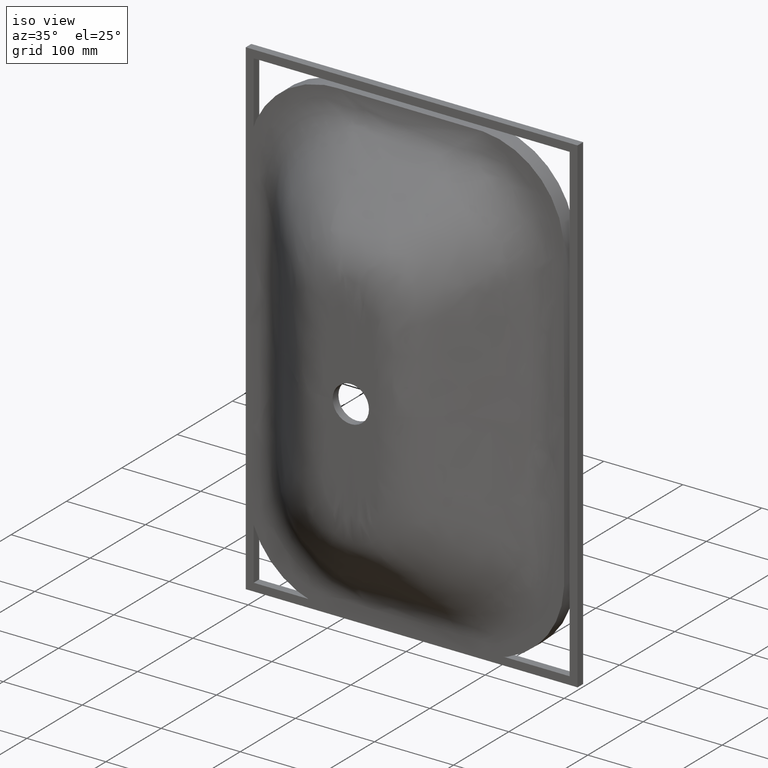
[diagram: clean part render]
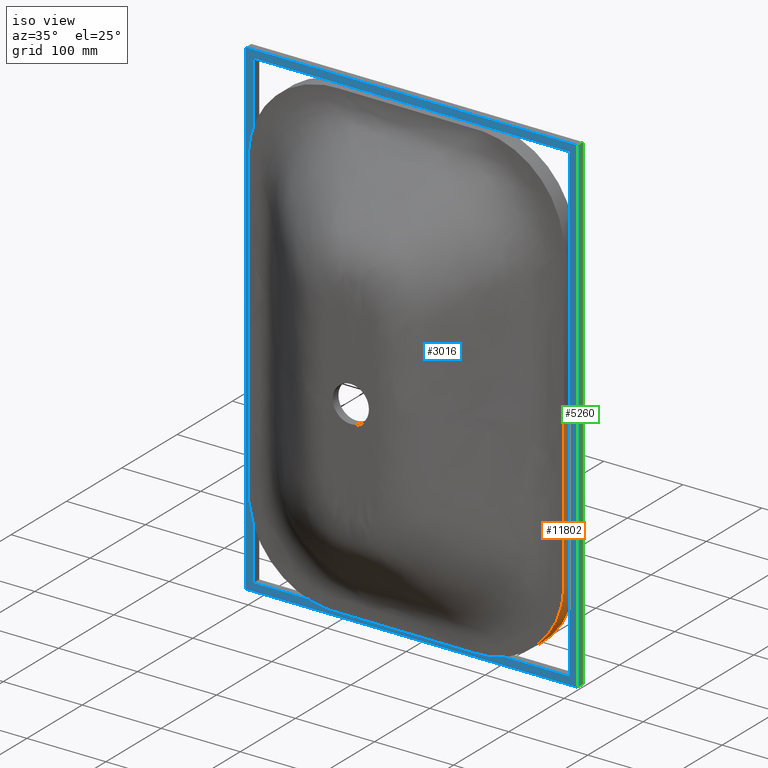
[diagram: same view with three faces highlighted in distinct colors, each labeled with its STEP entity id]
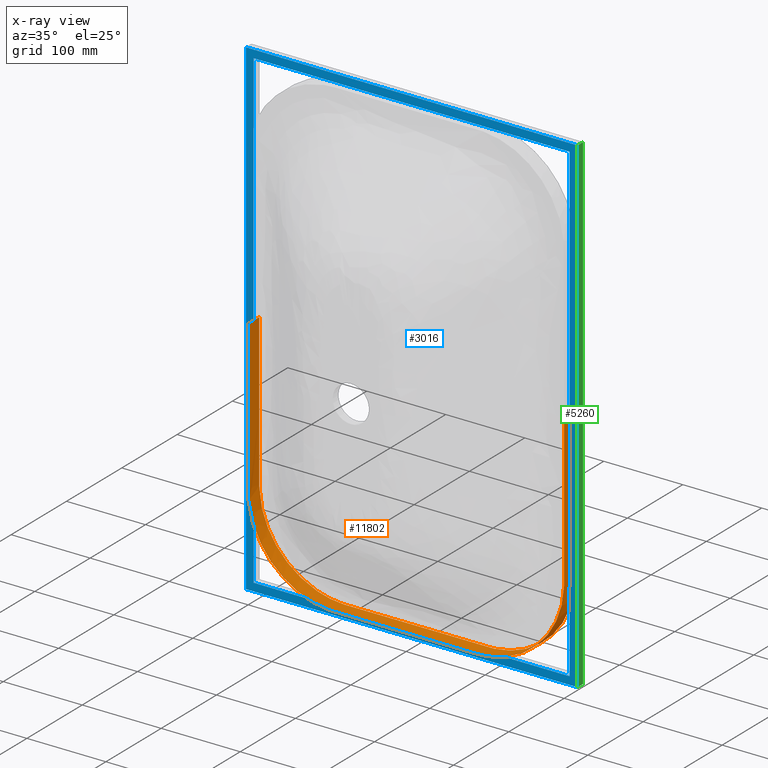
[diagram: x-ray of the same camera — body ghosted, the three highlighted faces saturated]
A machine part, iso view with three faces highlighted in distinct colors.
The next image is the same camera in x-ray (body ghosted, the three faces saturated) — at least one of them is partly hidden behind the body in this view.
Their STEP definitions:

[orange] entity #11802 — the highlighted face is a freeform B-spline surface patch.
#359 = CARTESIAN_POINT ( 'NONE',  ( -200.0000000000000600, 120.0000000000000000, -9.499999999999959100 ) ) ;
#507 = B_SPLINE_CURVE_WITH_KNOTS ( 'NONE', 3,
 ( #12117, #8622, #9222, #1859 ),
 .UNSPECIFIED., .F., .F.,
 ( 4, 4 ),
 ( 0.0000000000000000000, 1.000000000000000000 ),
 .UNSPECIFIED. ) ;
#657 = CARTESIAN_POINT ( 'NONE',  ( -200.0000000000000600, 120.0000000000000000, 6.505213034913026600E-016 ) ) ;
#742 = CARTESIAN_POINT ( 'NONE',  ( -194.0399032443967000, 119.9999999999999400, -227.0779828008005800 ) ) ;
#809 = CARTESIAN_POINT ( 'NONE',  ( -198.8080864718467600, 119.9999999999999700, -208.5657858098219900 ) ) ;
#875 = CARTESIAN_POINT ( 'NONE',  ( -194.0399032443967000, 99.99999999999995700, -227.0779828008005800 ) ) ;
#921 = CARTESIAN_POINT ( 'NONE',  ( 200.0000000000000600, 119.9999999999999600, -113.8931032711104100 ) ) ;
#1092 = CARTESIAN_POINT ( 'NONE',  ( -199.9999999999998900, 119.9999999999999600, -85.49999999999987200 ) ) ;
#1542 = CARTESIAN_POINT ( 'NONE',  ( -200.0000000000001100, 100.0000000000000000, -3.166666666666656300 ) ) ;
#1577 = CARTESIAN_POINT ( 'NONE',  ( -200.0000000000001100, 100.0000000000000000, 3.035766082959412400E-015 ) ) ;
#1604 = CARTESIAN_POINT ( 'NONE',  ( -76.98436227799040000, 100.0000000000000000, -299.9999999999999400 ) ) ;
#1859 = CARTESIAN_POINT ( 'NONE',  ( 200.0000000000001100, 119.9999999999999700, -4.857225732735059900E-013 ) ) ;
#1918 = CARTESIAN_POINT ( 'NONE',  ( 200.0000000000006800, 99.99999999999991500, -199.3423852784319200 ) ) ;
#1944 = CARTESIAN_POINT ( 'NONE',  ( -200.0000000000002000, 119.9999999999999900, -199.3423852784305600 ) ) ;
#2631 = CARTESIAN_POINT ( 'NONE',  ( -121.1660790566502800, 99.99999999999997200, -296.8106721460858400 ) ) ;
#2946 = VERTEX_POINT ( 'NONE', #10057 ) ;
#2985 = CARTESIAN_POINT ( 'NONE',  ( 1.734723475976807100E-013, 120.0000000000000000, -299.9999999999999400 ) ) ;
#3215 = CARTESIAN_POINT ( 'NONE',  ( 200.0000000000001100, 119.9999999999999900, -50.55976993777626700 ) ) ;
#3276 = CARTESIAN_POINT ( 'NONE',  ( 199.9999999999992900, 100.0000000000000900, -177.2264366044442500 ) ) ;
#3546 = EDGE_LOOP ( 'NONE', ( #8606, #8740, #9211, #5068 ) ) ;
#3737 = CARTESIAN_POINT ( 'NONE',  ( -200.0000000000001100, 99.99999999999994300, -18.99999999999994000 ) ) ;
#3746 = CARTESIAN_POINT ( 'NONE',  ( 102.0471619301132500, 100.0000000000000000, -299.9999999999999400 ) ) ;
#4166 = FACE_OUTER_BOUND ( 'NONE', #3546, .T. ) ;
#4976 = EDGE_CURVE ( 'NONE', #2946, #5466, #13759, .T. ) ;
#4997 = CARTESIAN_POINT ( 'NONE',  ( -200.0000000000001400, 99.99999999999997200, -9.499999999999973400 ) ) ;
#5068 = ORIENTED_EDGE ( 'NONE', *, *, #5881, .F. ) ;
#5189 = B_SPLINE_CURVE_WITH_KNOTS ( 'NONE', 3,
 ( #8139, #7375, #7321, #7318 ),
 .UNSPECIFIED., .F., .F.,
 ( 4, 4 ),
 ( 0.0000000000000000000, 1.000000000000000000 ),
 .UNSPECIFIED. ) ;
#5219 = CARTESIAN_POINT ( 'NONE',  ( -61.39880351619536500, 120.0000000000000300, -299.9999999999999400 ) ) ;
#5434 = CARTESIAN_POINT ( 'NONE',  ( -200.0000000000000600, 120.0000000000000000, 6.505213034913026600E-016 ) ) ;
#5435 = CARTESIAN_POINT ( 'NONE',  ( -200.0000000000000600, 120.0000000000000000, 3.166666666666654500 ) ) ;
#5447 = CARTESIAN_POINT ( 'NONE',  ( -200.0000000000000600, 120.0000000000000100, 9.499999999999962700 ) ) ;
#5463 = CARTESIAN_POINT ( 'NONE',  ( -200.0000000000000900, 120.0000000000000300, 19.00000000000000400 ) ) ;
#5466 = VERTEX_POINT ( 'NONE', #6899 ) ;
#5478 = CARTESIAN_POINT ( 'NONE',  ( -200.0000000000001400, 120.0000000000000600, 28.50000000000005000 ) ) ;
#5481 = CARTESIAN_POINT ( 'NONE',  ( -200.0000000000002300, 120.0000000000001400, 85.50000000000021300 ) ) ;
#5506 = CARTESIAN_POINT ( 'NONE',  ( -200.0000000000003700, 120.0000000000002100, 139.3333333333337700 ) ) ;
#5522 = CARTESIAN_POINT ( 'NONE',  ( -199.9999999999999700, 119.9999999999999600, 199.3423852784305300 ) ) ;
#5523 = CARTESIAN_POINT ( 'NONE',  ( -198.8080864718465600, 119.9999999999999900, 208.5657858098220700 ) ) ;
#5547 = CARTESIAN_POINT ( 'NONE',  ( -194.0399032443967000, 120.0000000000000000, 227.0779828008008100 ) ) ;
#5556 = CARTESIAN_POINT ( 'NONE',  ( 121.1660790566503700, 119.9999999999999600, -296.8106721460857200 ) ) ;
#5560 = CARTESIAN_POINT ( 'NONE',  ( -186.6589759895213700, 120.0000000000000900, 245.1906514458044600 ) ) ;
#5561 = CARTESIAN_POINT ( 'NONE',  ( -168.6923294650224200, 119.9999999999999700, 268.6923294650223400 ) ) ;
#5572 = CARTESIAN_POINT ( 'NONE',  ( -147.3414267532380100, 120.0000000000000600, 285.0147497671384300 ) ) ;
#5587 = CARTESIAN_POINT ( 'NONE',  ( -121.1660790566503200, 119.9999999999999900, 296.8106721460858900 ) ) ;
#5604 = CARTESIAN_POINT ( 'NONE',  ( -102.0471619301132100, 119.9999999999999700, 300.0000000000000600 ) ) ;
#5606 = CARTESIAN_POINT ( 'NONE',  ( -83.49218113899475200, 120.0000000000000000, 300.0000000000000600 ) ) ;
#5616 = CARTESIAN_POINT ( 'NONE',  ( -76.98436227798946200, 120.0000000000000000, 300.0000000000000600 ) ) ;
#5629 = CARTESIAN_POINT ( 'NONE',  ( -65.93767346658960100, 120.0000000000000000, 300.0000000000000600 ) ) ;
#5649 = CARTESIAN_POINT ( 'NONE',  ( -61.39880351619501700, 120.0000000000000000, 300.0000000000000600 ) ) ;
#5651 = CARTESIAN_POINT ( 'NONE',  ( -37.90662237720037100, 120.0000000000000300, 300.0000000000001100 ) ) ;
#5663 = CARTESIAN_POINT ( 'NONE',  ( -3.053113317719180500E-013, 120.0000000000000000, 300.0000000000000600 ) ) ;
#5677 = CARTESIAN_POINT ( 'NONE',  ( 37.90662237719976000, 120.0000000000000000, 300.0000000000000600 ) ) ;
#5694 = CARTESIAN_POINT ( 'NONE',  ( 61.39880351619482500, 120.0000000000000000, 300.0000000000000600 ) ) ;
#5697 = CARTESIAN_POINT ( 'NONE',  ( 65.93767346658975700, 120.0000000000000400, 300.0000000000000600 ) ) ;
#5709 = CARTESIAN_POINT ( 'NONE',  ( 76.98436227798987400, 120.0000000000000100, 300.0000000000000600 ) ) ;
#5712 = CARTESIAN_POINT ( 'NONE',  ( 83.49218113899498000, 120.0000000000000000, 300.0000000000000600 ) ) ;
#5722 = CARTESIAN_POINT ( 'NONE',  ( 102.0471619301131900, 120.0000000000000000, 300.0000000000000600 ) ) ;
#5740 = CARTESIAN_POINT ( 'NONE',  ( 121.1660790566501800, 120.0000000000000100, 296.8106721460861800 ) ) ;
#5743 = CARTESIAN_POINT ( 'NONE',  ( 147.3414267532380100, 120.0000000000000100, 285.0147497671384800 ) ) ;
#5756 = CARTESIAN_POINT ( 'NONE',  ( 168.6923294650226500, 119.9999999999998900, 268.6923294650225700 ) ) ;
#5758 = CARTESIAN_POINT ( 'NONE',  ( 186.6589759895216200, 120.0000000000000700, 245.1906514458039500 ) ) ;
#5768 = CARTESIAN_POINT ( 'NONE',  ( 194.0399032443970400, 119.9999999999999700, 227.0779828008002400 ) ) ;
#5786 = CARTESIAN_POINT ( 'NONE',  ( 198.8080864718468200, 119.9999999999999900, 208.5657858098214200 ) ) ;
#5789 = CARTESIAN_POINT ( 'NONE',  ( 200.0000000000001400, 119.9999999999999100, 199.3423852784296700 ) ) ;
#5801 = CARTESIAN_POINT ( 'NONE',  ( 200.0000000000001700, 120.0000000000001100, 177.2264366044451500 ) ) ;
#5803 = CARTESIAN_POINT ( 'NONE',  ( 200.0000000000000900, 119.9999999999999700, 113.8931032711107600 ) ) ;
#5809 = CARTESIAN_POINT ( 'NONE',  ( -199.9999999999996300, 120.0000000000000900, -139.3333333333332000 ) ) ;
#5814 = CARTESIAN_POINT ( 'NONE',  ( 200.0000000000001100, 120.0000000000000000, -6.036837696399288700E-013 ) ) ;
#5835 = CARTESIAN_POINT ( 'NONE',  ( 200.0000000000000600, 119.9999999999999600, -113.8931032711114100 ) ) ;
#5839 = CARTESIAN_POINT ( 'NONE',  ( 199.9999999999992900, 119.9999999999996600, -177.2264366044442500 ) ) ;
#5858 = CARTESIAN_POINT ( 'NONE',  ( 200.0000000000006800, 120.0000000000002700, -199.3423852784319200 ) ) ;
#5870 = CARTESIAN_POINT ( 'NONE',  ( 198.8080864718465400, 120.0000000000000100, -208.5657858098240100 ) ) ;
#5881 = EDGE_CURVE ( 'NONE', #6667, #7908, #9047, .T. ) ;
#5893 = CARTESIAN_POINT ( 'NONE',  ( 194.0399032443960400, 119.9999999999999600, -227.0779828008027400 ) ) ;
#5898 = CARTESIAN_POINT ( 'NONE',  ( 186.6589759895207100, 120.0000000000000100, -245.1906514458048900 ) ) ;
#5910 = CARTESIAN_POINT ( 'NONE',  ( 168.6923294650226500, 120.0000000000000000, -268.6923294650223400 ) ) ;
#5925 = CARTESIAN_POINT ( 'NONE',  ( 147.3414267532380100, 120.0000000000000600, -285.0147497671384300 ) ) ;
#5943 = CARTESIAN_POINT ( 'NONE',  ( 121.1660790566503700, 119.9999999999999600, -296.8106721460857200 ) ) ;
#5945 = CARTESIAN_POINT ( 'NONE',  ( 102.0471619301132500, 120.0000000000000000, -299.9999999999999400 ) ) ;
#5959 = CARTESIAN_POINT ( 'NONE',  ( 83.49218113899425500, 120.0000000000000000, -300.0000000000000000 ) ) ;
#5969 = CARTESIAN_POINT ( 'NONE',  ( 76.98436227798835300, 120.0000000000000000, -299.9999999999999400 ) ) ;
#5989 = CARTESIAN_POINT ( 'NONE',  ( 65.93767346658840700, 120.0000000000000000, -300.0000000000000000 ) ) ;
#5990 = CARTESIAN_POINT ( 'NONE',  ( 61.39880351619436300, 120.0000000000000000, -300.0000000000000600 ) ) ;
#6007 = CARTESIAN_POINT ( 'NONE',  ( 37.90662237720035700, 120.0000000000000100, -299.9999999999999400 ) ) ;
#6021 = CARTESIAN_POINT ( 'NONE',  ( 1.734723475976807100E-013, 120.0000000000000000, -299.9999999999999400 ) ) ;
#6036 = CARTESIAN_POINT ( 'NONE',  ( -37.90662237720006500, 119.9999999999999700, -299.9999999999999400 ) ) ;
#6038 = CARTESIAN_POINT ( 'NONE',  ( -61.39880351619536500, 120.0000000000000300, -299.9999999999999400 ) ) ;
#6056 = CARTESIAN_POINT ( 'NONE',  ( -65.93767346659043900, 120.0000000000000300, -299.9999999999999400 ) ) ;
#6070 = CARTESIAN_POINT ( 'NONE',  ( -76.98436227799040000, 120.0000000000000100, -299.9999999999999400 ) ) ;
#6087 = CARTESIAN_POINT ( 'NONE',  ( -83.49218113899527800, 119.9999999999999900, -299.9999999999999400 ) ) ;
#6089 = CARTESIAN_POINT ( 'NONE',  ( -102.0471619301132200, 120.0000000000000600, -300.0000000000001700 ) ) ;
#6108 = CARTESIAN_POINT ( 'NONE',  ( -121.1660790566502800, 119.9999999999999400, -296.8106721460858400 ) ) ;
#6122 = CARTESIAN_POINT ( 'NONE',  ( -147.3414267532379500, 120.0000000000000400, -285.0147497671384800 ) ) ;
#6138 = CARTESIAN_POINT ( 'NONE',  ( -168.6923294650225400, 120.0000000000000000, -268.6923294650225100 ) ) ;
#6141 = CARTESIAN_POINT ( 'NONE',  ( -186.6589759895213700, 120.0000000000000600, -245.1906514458042400 ) ) ;
#6160 = CARTESIAN_POINT ( 'NONE',  ( -194.0399032443967000, 119.9999999999999400, -227.0779828008005800 ) ) ;
#6172 = CARTESIAN_POINT ( 'NONE',  ( -198.8080864718467600, 119.9999999999999700, -208.5657858098219900 ) ) ;
#6192 = CARTESIAN_POINT ( 'NONE',  ( -200.0000000000002000, 119.9999999999999900, -199.3423852784305600 ) ) ;
#6193 = CARTESIAN_POINT ( 'NONE',  ( -199.9999999999996300, 120.0000000000000900, -139.3333333333332000 ) ) ;
#6211 = CARTESIAN_POINT ( 'NONE',  ( -199.9999999999998900, 119.9999999999999600, -85.49999999999987200 ) ) ;
#6212 = CARTESIAN_POINT ( 'NONE',  ( -200.0000000000000000, 119.9999999999999900, -28.49999999999988300 ) ) ;
#6226 = CARTESIAN_POINT ( 'NONE',  ( -200.0000000000000600, 119.9999999999999900, -18.99999999999992200 ) ) ;
#6246 = CARTESIAN_POINT ( 'NONE',  ( -200.0000000000000600, 120.0000000000000000, -9.499999999999959100 ) ) ;
#6248 = CARTESIAN_POINT ( 'NONE',  ( -200.0000000000000600, 120.0000000000000000, -3.166666666666652800 ) ) ;
#6265 = CARTESIAN_POINT ( 'NONE',  ( -200.0000000000000600, 120.0000000000000000, 6.505213034913026600E-016 ) ) ;
#6266 = CARTESIAN_POINT ( 'NONE',  ( -200.0000000000000900, 113.3333333333333400, -2.385244779468109800E-015 ) ) ;
#6279 = CARTESIAN_POINT ( 'NONE',  ( -200.0000000000000900, 113.3333333333333400, 3.166666666666652800 ) ) ;
#6298 = CARTESIAN_POINT ( 'NONE',  ( -200.0000000000000900, 113.3333333333333700, 9.499999999999964500 ) ) ;
#6300 = CARTESIAN_POINT ( 'NONE',  ( -200.0000000000000900, 113.3333333333334000, 19.00000000000000700 ) ) ;
#6317 = CARTESIAN_POINT ( 'NONE',  ( -200.0000000000001400, 113.3333333333334300, 28.50000000000004600 ) ) ;
#6318 = CARTESIAN_POINT ( 'NONE',  ( -200.0000000000001400, 113.3333333333335000, 85.50000000000017100 ) ) ;
#6328 = CARTESIAN_POINT ( 'NONE',  ( -200.0000000000001100, 113.3333333333334600, 139.3333333333336600 ) ) ;
#6349 = CARTESIAN_POINT ( 'NONE',  ( -200.0000000000000000, 113.3333333333333300, 199.3423852784305300 ) ) ;
#6351 = CARTESIAN_POINT ( 'NONE',  ( -198.8080864718465900, 113.3333333333333400, 208.5657858098220200 ) ) ;
#6366 = CARTESIAN_POINT ( 'NONE',  ( -194.0399032443967300, 113.3333333333333300, 227.0779828008007800 ) ) ;
#6367 = CARTESIAN_POINT ( 'NONE',  ( -186.6589759895213700, 113.3333333333334300, 245.1906514458043500 ) ) ;
#6379 = CARTESIAN_POINT ( 'NONE',  ( -168.6923294650224500, 113.3333333333333100, 268.6923294650224000 ) ) ;
#6397 = CARTESIAN_POINT ( 'NONE',  ( -147.3414267532380100, 113.3333333333333700, 285.0147497671384300 ) ) ;
#6399 = CARTESIAN_POINT ( 'NONE',  ( -121.1660790566503300, 113.3333333333333300, 296.8106721460859500 ) ) ;
#6417 = CARTESIAN_POINT ( 'NONE',  ( -102.0471619301132300, 113.3333333333333100, 300.0000000000001700 ) ) ;
#6418 = CARTESIAN_POINT ( 'NONE',  ( -83.49218113899478100, 113.3333333333333100, 300.0000000000000600 ) ) ;
#6425 = CARTESIAN_POINT ( 'NONE',  ( -76.98436227798947600, 113.3333333333333100, 300.0000000000000600 ) ) ;
#6445 = CARTESIAN_POINT ( 'NONE',  ( -65.93767346658961500, 113.3333333333333300, 300.0000000000001100 ) ) ;
#6446 = CARTESIAN_POINT ( 'NONE',  ( -61.39880351619502400, 113.3333333333333400, 300.0000000000001100 ) ) ;
#6462 = CARTESIAN_POINT ( 'NONE',  ( -37.90662237720037100, 113.3333333333333600, 300.0000000000001100 ) ) ;
#6463 = CARTESIAN_POINT ( 'NONE',  ( -2.833381677428785100E-013, 113.3333333333333400, 300.0000000000000600 ) ) ;
#6473 = CARTESIAN_POINT ( 'NONE',  ( 37.90662237719979500, 113.3333333333333600, 300.0000000000000600 ) ) ;
#6493 = CARTESIAN_POINT ( 'NONE',  ( 61.39880351619485300, 113.3333333333333400, 300.0000000000000600 ) ) ;
#6495 = CARTESIAN_POINT ( 'NONE',  ( 65.93767346658978600, 113.3333333333333700, 300.0000000000000600 ) ) ;
#6510 = CARTESIAN_POINT ( 'NONE',  ( 76.98436227798988800, 113.3333333333333300, 300.0000000000000600 ) ) ;
#6511 = CARTESIAN_POINT ( 'NONE',  ( 83.49218113899500800, 113.3333333333333300, 300.0000000000000600 ) ) ;
#6523 = CARTESIAN_POINT ( 'NONE',  ( 102.0471619301131800, 113.3333333333333100, 300.0000000000001100 ) ) ;
#6538 = CARTESIAN_POINT ( 'NONE',  ( 121.1660790566501800, 113.3333333333333400, 296.8106721460861800 ) ) ;
#6554 = CARTESIAN_POINT ( 'NONE',  ( 147.3414267532380100, 113.3333333333333300, 285.0147497671384800 ) ) ;
#6555 = CARTESIAN_POINT ( 'NONE',  ( 168.6923294650226500, 113.3333333333332400, 268.6923294650225700 ) ) ;
#6570 = CARTESIAN_POINT ( 'NONE',  ( 186.6589759895216200, 113.3333333333333900, 245.1906514458039800 ) ) ;
#6589 = CARTESIAN_POINT ( 'NONE',  ( 194.0399032443970400, 113.3333333333332900, 227.0779828008002700 ) ) ;
#6605 = CARTESIAN_POINT ( 'NONE',  ( 198.8080864718468200, 113.3333333333333300, 208.5657858098214500 ) ) ;
#6607 = CARTESIAN_POINT ( 'NONE',  ( 200.0000000000001400, 113.3333333333331400, 199.3423852784297000 ) ) ;
#6633 = CARTESIAN_POINT ( 'NONE',  ( 200.0000000000001700, 113.3333333333335800, 177.2264366044451800 ) ) ;
#6650 = CARTESIAN_POINT ( 'NONE',  ( 200.0000000000000900, 113.3333333333333100, 113.8931032711107900 ) ) ;
#6651 = CARTESIAN_POINT ( 'NONE',  ( 200.0000000000001100, 113.3333333333333300, -5.574244769472139800E-013 ) ) ;
#6667 = VERTEX_POINT ( 'NONE', #11848 ) ;
#6675 = CARTESIAN_POINT ( 'NONE',  ( 200.0000000000000900, 113.3333333333333000, -113.8931032711114100 ) ) ;
#6691 = CARTESIAN_POINT ( 'NONE',  ( 199.9999999999992900, 113.3333333333331300, -177.2264366044442500 ) ) ;
#6694 = CARTESIAN_POINT ( 'NONE',  ( 200.0000000000006800, 113.3333333333335000, -199.3423852784319200 ) ) ;
#6721 = CARTESIAN_POINT ( 'NONE',  ( 198.8080864718465400, 113.3333333333333400, -208.5657858098240100 ) ) ;
#6736 = CARTESIAN_POINT ( 'NONE',  ( 194.0399032443960400, 113.3333333333333000, -227.0779828008027400 ) ) ;
#6737 = CARTESIAN_POINT ( 'NONE',  ( 186.6589759895207100, 113.3333333333333700, -245.1906514458048900 ) ) ;
#6747 = CARTESIAN_POINT ( 'NONE',  ( 168.6923294650226500, 113.3333333333333400, -268.6923294650223400 ) ) ;
#6762 = CARTESIAN_POINT ( 'NONE',  ( 147.3414267532380100, 113.3333333333334100, -285.0147497671384300 ) ) ;
#6780 = CARTESIAN_POINT ( 'NONE',  ( 121.1660790566503700, 113.3333333333333400, -296.8106721460857200 ) ) ;
#6781 = CARTESIAN_POINT ( 'NONE',  ( 102.0471619301132500, 113.3333333333333900, -299.9999999999999400 ) ) ;
#6792 = CARTESIAN_POINT ( 'NONE',  ( 83.49218113899425500, 113.3333333333333600, -300.0000000000000000 ) ) ;
#6810 = CARTESIAN_POINT ( 'NONE',  ( 76.98436227798835300, 113.3333333333333900, -299.9999999999999400 ) ) ;
#6834 = CARTESIAN_POINT ( 'NONE',  ( 65.93767346658840700, 113.3333333333333600, -300.0000000000000000 ) ) ;
#6835 = CARTESIAN_POINT ( 'NONE',  ( 61.39880351619435600, 113.3333333333333400, -300.0000000000000600 ) ) ;
#6847 = CARTESIAN_POINT ( 'NONE',  ( 37.90662237720035700, 113.3333333333333700, -299.9999999999999400 ) ) ;
#6852 = CARTESIAN_POINT ( 'NONE',  ( 1.676899360110913900E-013, 113.3333333333333600, -299.9999999999999400 ) ) ;
#6865 = CARTESIAN_POINT ( 'NONE',  ( -37.90662237720007300, 113.3333333333333300, -299.9999999999999400 ) ) ;
#6885 = CARTESIAN_POINT ( 'NONE',  ( -61.39880351619537200, 113.3333333333333900, -299.9999999999999400 ) ) ;
#6897 = CARTESIAN_POINT ( 'NONE',  ( -65.93767346659043900, 113.3333333333333700, -299.9999999999999400 ) ) ;
#6899 = CARTESIAN_POINT ( 'NONE',  ( 200.0000000000001100, 99.99999999999998600, -5.055243578884945900E-013 ) ) ;
#6902 = CARTESIAN_POINT ( 'NONE',  ( -76.98436227799041400, 113.3333333333333600, -299.9999999999999400 ) ) ;
#6911 = CARTESIAN_POINT ( 'NONE',  ( -83.49218113899529200, 113.3333333333333400, -299.9999999999999400 ) ) ;
#6929 = CARTESIAN_POINT ( 'NONE',  ( -102.0471619301132300, 113.3333333333333700, -300.0000000000001700 ) ) ;
#6931 = CARTESIAN_POINT ( 'NONE',  ( -121.1660790566502900, 113.3333333333333000, -296.8106721460858400 ) ) ;
#6943 = CARTESIAN_POINT ( 'NONE',  ( -147.3414267532379500, 113.3333333333333900, -285.0147497671384800 ) ) ;
#6949 = CARTESIAN_POINT ( 'NONE',  ( -168.6923294650225400, 113.3333333333333400, -268.6923294650225100 ) ) ;
#6958 = CARTESIAN_POINT ( 'NONE',  ( -186.6589759895213700, 113.3333333333333900, -245.1906514458042400 ) ) ;
#6977 = CARTESIAN_POINT ( 'NONE',  ( -194.0399032443967300, 113.3333333333333000, -227.0779828008005800 ) ) ;
#6979 = CARTESIAN_POINT ( 'NONE',  ( -198.8080864718467900, 113.3333333333333300, -208.5657858098219900 ) ) ;
#6995 = CARTESIAN_POINT ( 'NONE',  ( -200.0000000000002300, 113.3333333333333300, -199.3423852784305800 ) ) ;
#7005 = CARTESIAN_POINT ( 'NONE',  ( -199.9999999999996300, 113.3333333333333700, -139.3333333333330900 ) ) ;
#7023 = CARTESIAN_POINT ( 'NONE',  ( -199.9999999999999100, 113.3333333333332700, -85.49999999999985800 ) ) ;
#7026 = CARTESIAN_POINT ( 'NONE',  ( -200.0000000000000600, 113.3333333333333300, -28.49999999999989300 ) ) ;
#7037 = CARTESIAN_POINT ( 'NONE',  ( -200.0000000000000900, 113.3333333333333300, -18.99999999999993200 ) ) ;
#7041 = CARTESIAN_POINT ( 'NONE',  ( -200.0000000000000900, 113.3333333333333600, -9.499999999999968000 ) ) ;
#7053 = CARTESIAN_POINT ( 'NONE',  ( -200.0000000000000900, 113.3333333333333400, -3.166666666666658100 ) ) ;
#7072 = CARTESIAN_POINT ( 'NONE',  ( -200.0000000000000900, 113.3333333333333400, -2.385244779468109800E-015 ) ) ;
#7073 = CARTESIAN_POINT ( 'NONE',  ( -200.0000000000000900, 106.6666666666666900, 6.071532165918824800E-015 ) ) ;
#7091 = CARTESIAN_POINT ( 'NONE',  ( -200.0000000000000900, 106.6666666666666900, 3.166666666666663000 ) ) ;
#7102 = CARTESIAN_POINT ( 'NONE',  ( -200.0000000000000900, 106.6666666666666900, 9.499999999999976900 ) ) ;
#7120 = CARTESIAN_POINT ( 'NONE',  ( -200.0000000000001100, 106.6666666666667000, 19.00000000000001400 ) ) ;
#7121 = CARTESIAN_POINT ( 'NONE',  ( -200.0000000000001100, 106.6666666666667300, 28.50000000000005300 ) ) ;
#7142 = CARTESIAN_POINT ( 'NONE',  ( -200.0000000000000600, 106.6666666666667700, 85.50000000000014200 ) ) ;
#7155 = CARTESIAN_POINT ( 'NONE',  ( -199.9999999999998900, 106.6666666666666000, 139.3333333333334800 ) ) ;
#7171 = CARTESIAN_POINT ( 'NONE',  ( -200.0000000000001100, 106.6666666666666700, 199.3423852784305300 ) ) ;
#7172 = CARTESIAN_POINT ( 'NONE',  ( -198.8080864718466500, 106.6666666666666700, 208.5657858098219600 ) ) ;
#7192 = CARTESIAN_POINT ( 'NONE',  ( -194.0399032443968400, 106.6666666666666400, 227.0779828008007800 ) ) ;
#7209 = CARTESIAN_POINT ( 'NONE',  ( -186.6589759895213900, 106.6666666666667400, 245.1906514458042600 ) ) ;
#7229 = CARTESIAN_POINT ( 'NONE',  ( -168.6923294650225400, 106.6666666666666400, 268.6923294650224000 ) ) ;
#7230 = CARTESIAN_POINT ( 'NONE',  ( -147.3414267532381000, 106.6666666666667000, 285.0147497671383700 ) ) ;
#7251 = CARTESIAN_POINT ( 'NONE',  ( -121.1660790566503600, 106.6666666666666600, 296.8106721460860600 ) ) ;
#7266 = CARTESIAN_POINT ( 'NONE',  ( -102.0471619301132900, 106.6666666666666400, 300.0000000000003400 ) ) ;
#7286 = CARTESIAN_POINT ( 'NONE',  ( -83.49218113899482300, 106.6666666666666400, 300.0000000000000600 ) ) ;
#7305 = CARTESIAN_POINT ( 'NONE',  ( -76.98436227798951800, 106.6666666666666300, 300.0000000000000600 ) ) ;
#7317 = CARTESIAN_POINT ( 'NONE',  ( -65.93767346658965800, 106.6666666666666400, 300.0000000000001100 ) ) ;
#7318 = CARTESIAN_POINT ( 'NONE',  ( -200.0000000000000600, 120.0000000000000000, 6.505213034913026600E-016 ) ) ;
#7321 = CARTESIAN_POINT ( 'NONE',  ( -200.0000000000000900, 113.3333333333333400, -2.385244779468109800E-015 ) ) ;
#7338 = CARTESIAN_POINT ( 'NONE',  ( -61.39880351619505200, 106.6666666666666400, 300.0000000000001100 ) ) ;
#7339 = CARTESIAN_POINT ( 'NONE',  ( -37.90662237720039200, 106.6666666666666300, 299.9999999999999400 ) ) ;
#7358 = CARTESIAN_POINT ( 'NONE',  ( -2.787122384736070400E-013, 106.6666666666666000, 299.9999999999999400 ) ) ;
#7374 = CARTESIAN_POINT ( 'NONE',  ( 37.90662237719981700, 106.6666666666666100, 300.0000000000000600 ) ) ;
#7375 = CARTESIAN_POINT ( 'NONE',  ( -200.0000000000000900, 106.6666666666666900, 6.071532165918824800E-015 ) ) ;
#7397 = CARTESIAN_POINT ( 'NONE',  ( 61.39880351619486700, 106.6666666666666100, 300.0000000000000600 ) ) ;
#7399 = CARTESIAN_POINT ( 'NONE',  ( 65.93767346658981400, 106.6666666666666400, 300.0000000000000600 ) ) ;
#7412 = CARTESIAN_POINT ( 'NONE',  ( -168.6923294650225400, 99.99999999999997200, -268.6923294650225100 ) ) ;
#7419 = CARTESIAN_POINT ( 'NONE',  ( 76.98436227798990200, 106.6666666666666700, 300.0000000000000600 ) ) ;
#7420 = CARTESIAN_POINT ( 'NONE',  ( 83.49218113899500800, 106.6666666666666400, 299.9999999999999400 ) ) ;
#7436 = CARTESIAN_POINT ( 'NONE',  ( 102.0471619301131800, 106.6666666666666000, 300.0000000000000000 ) ) ;
#7457 = CARTESIAN_POINT ( 'NONE',  ( 121.1660790566501800, 106.6666666666666300, 296.8106721460861800 ) ) ;
#7458 = CARTESIAN_POINT ( 'NONE',  ( 147.3414267532380100, 106.6666666666666400, 285.0147497671384800 ) ) ;
#7476 = CARTESIAN_POINT ( 'NONE',  ( 168.6923294650226500, 106.6666666666665600, 268.6923294650225700 ) ) ;
#7477 = CARTESIAN_POINT ( 'NONE',  ( 186.6589759895216200, 106.6666666666667000, 245.1906514458039200 ) ) ;
#7491 = CARTESIAN_POINT ( 'NONE',  ( 194.0399032443970400, 106.6666666666666000, 227.0779828008002100 ) ) ;
#7508 = CARTESIAN_POINT ( 'NONE',  ( 76.98436227798835300, 100.0000000000000000, -299.9999999999999400 ) ) ;
#7514 = CARTESIAN_POINT ( 'NONE',  ( 198.8080864718468200, 106.6666666666666600, 208.5657858098213900 ) ) ;
#7515 = CARTESIAN_POINT ( 'NONE',  ( 200.0000000000001400, 106.6666666666663900, 199.3423852784296500 ) ) ;
#7531 = CARTESIAN_POINT ( 'NONE',  ( 200.0000000000001700, 106.6666666666670600, 177.2264366044451300 ) ) ;
#7532 = CARTESIAN_POINT ( 'NONE',  ( 200.0000000000000900, 106.6666666666666600, 113.8931032711107600 ) ) ;
#7543 = CARTESIAN_POINT ( 'NONE',  ( 200.0000000000001100, 106.6666666666666400, -5.111651842544991900E-013 ) ) ;
#7563 = CARTESIAN_POINT ( 'NONE',  ( 200.0000000000000900, 106.6666666666666300, -113.8931032711114100 ) ) ;
#7565 = CARTESIAN_POINT ( 'NONE',  ( 199.9999999999992900, 106.6666666666666000, -177.2264366044442500 ) ) ;
#7583 = CARTESIAN_POINT ( 'NONE',  ( 200.0000000000006800, 106.6666666666666900, -199.3423852784319200 ) ) ;
#7584 = CARTESIAN_POINT ( 'NONE',  ( 198.8080864718465400, 106.6666666666666600, -208.5657858098240100 ) ) ;
#7597 = CARTESIAN_POINT ( 'NONE',  ( 194.0399032443960400, 106.6666666666666300, -227.0779828008027400 ) ) ;
#7599 = CARTESIAN_POINT ( 'NONE',  ( -83.49218113899527800, 100.0000000000000100, -299.9999999999999400 ) ) ;
#7619 = CARTESIAN_POINT ( 'NONE',  ( 186.6589759895207100, 106.6666666666666900, -245.1906514458048900 ) ) ;
#7620 = CARTESIAN_POINT ( 'NONE',  ( 168.6923294650226500, 106.6666666666666700, -268.6923294650223400 ) ) ;
#7639 = CARTESIAN_POINT ( 'NONE',  ( 147.3414267532380100, 106.6666666666667100, -285.0147497671384300 ) ) ;
#7641 = CARTESIAN_POINT ( 'NONE',  ( 121.1660790566503700, 106.6666666666666400, -296.8106721460857200 ) ) ;
#7653 = CARTESIAN_POINT ( 'NONE',  ( 102.0471619301132500, 106.6666666666666600, -299.9999999999999400 ) ) ;
#7670 = CARTESIAN_POINT ( 'NONE',  ( 83.49218113899425500, 106.6666666666666600, -300.0000000000000000 ) ) ;
#7683 = CARTESIAN_POINT ( 'NONE',  ( 76.98436227798835300, 106.6666666666666700, -299.9999999999999400 ) ) ;
#7684 = CARTESIAN_POINT ( 'NONE',  ( 65.93767346658840700, 106.6666666666666700, -300.0000000000000000 ) ) ;
#7691 = CARTESIAN_POINT ( 'NONE',  ( -200.0000000000000000, 119.9999999999999900, -28.49999999999988300 ) ) ;
#7699 = CARTESIAN_POINT ( 'NONE',  ( 61.39880351619437000, 106.6666666666666700, -300.0000000000000600 ) ) ;
#7709 = CARTESIAN_POINT ( 'NONE',  ( -147.3414267532379500, 99.99999999999998600, -285.0147497671384800 ) ) ;
#7714 = CARTESIAN_POINT ( 'NONE',  ( 37.90662237720036400, 106.6666666666666900, -299.9999999999999400 ) ) ;
#7730 = CARTESIAN_POINT ( 'NONE',  ( 1.792547591842700800E-013, 106.6666666666666600, -299.9999999999999400 ) ) ;
#7731 = CARTESIAN_POINT ( 'NONE',  ( -37.90662237720005800, 106.6666666666666400, -299.9999999999999400 ) ) ;
#7758 = CARTESIAN_POINT ( 'NONE',  ( -186.6589759895213700, 99.99999999999997200, -245.1906514458042400 ) ) ;
#7762 = CARTESIAN_POINT ( 'NONE',  ( -61.39880351619536500, 106.6666666666667000, -299.9999999999999400 ) ) ;
#7776 = CARTESIAN_POINT ( 'NONE',  ( -65.93767346659043900, 106.6666666666666700, -299.9999999999999400 ) ) ;
#7777 = CARTESIAN_POINT ( 'NONE',  ( -76.98436227799040000, 106.6666666666666700, -299.9999999999999400 ) ) ;
#7805 = CARTESIAN_POINT ( 'NONE',  ( -83.49218113899526400, 106.6666666666666700, -299.9999999999999400 ) ) ;
#7818 = CARTESIAN_POINT ( 'NONE',  ( -102.0471619301132100, 106.6666666666666400, -300.0000000000001700 ) ) ;
#7819 = CARTESIAN_POINT ( 'NONE',  ( -121.1660790566502800, 106.6666666666666100, -296.8106721460858400 ) ) ;
#7848 = CARTESIAN_POINT ( 'NONE',  ( -147.3414267532379500, 106.6666666666666600, -285.0147497671384800 ) ) ;
#7864 = CARTESIAN_POINT ( 'NONE',  ( -168.6923294650225400, 106.6666666666666400, -268.6923294650225100 ) ) ;
#7865 = CARTESIAN_POINT ( 'NONE',  ( -186.6589759895213700, 106.6666666666666600, -245.1906514458042400 ) ) ;
#7878 = CARTESIAN_POINT ( 'NONE',  ( -194.0399032443967000, 106.6666666666666100, -227.0779828008005800 ) ) ;
#7897 = CARTESIAN_POINT ( 'NONE',  ( -198.8080864718467600, 106.6666666666666300, -208.5657858098219900 ) ) ;
#7908 = VERTEX_POINT ( 'NONE', #657 ) ;
#7918 = CARTESIAN_POINT ( 'NONE',  ( -200.0000000000002000, 106.6666666666666600, -199.3423852784306100 ) ) ;
#7919 = CARTESIAN_POINT ( 'NONE',  ( -199.9999999999996300, 106.6666666666666300, -139.3333333333329400 ) ) ;
#7950 = CARTESIAN_POINT ( 'NONE',  ( -199.9999999999999400, 106.6666666666665300, -85.49999999999984400 ) ) ;
#7967 = CARTESIAN_POINT ( 'NONE',  ( -200.0000000000000900, 106.6666666666666100, -28.49999999999989000 ) ) ;
#7970 = CARTESIAN_POINT ( 'NONE',  ( -200.0000000000000900, 106.6666666666666100, -18.99999999999992900 ) ) ;
#7999 = CARTESIAN_POINT ( 'NONE',  ( -200.0000000000001100, 106.6666666666666400, -9.499999999999964500 ) ) ;
#8019 = CARTESIAN_POINT ( 'NONE',  ( -200.0000000000000900, 106.6666666666666900, -3.166666666666651000 ) ) ;
#8021 = CARTESIAN_POINT ( 'NONE',  ( -200.0000000000000900, 106.6666666666666900, 6.071532165918824800E-015 ) ) ;
#8034 = CARTESIAN_POINT ( 'NONE',  ( -200.0000000000001100, 100.0000000000000000, 3.035766082959412400E-015 ) ) ;
#8036 = CARTESIAN_POINT ( 'NONE',  ( -102.0471619301132200, 99.99999999999994300, -300.0000000000001700 ) ) ;
#8040 = CARTESIAN_POINT ( 'NONE',  ( -200.0000000000001100, 100.0000000000000000, 3.166666666666662100 ) ) ;
#8052 = CARTESIAN_POINT ( 'NONE',  ( -200.0000000000001100, 100.0000000000000300, 9.499999999999978700 ) ) ;
#8072 = CARTESIAN_POINT ( 'NONE',  ( 147.3414267532380100, 100.0000000000000100, -285.0147497671384300 ) ) ;
#8076 = CARTESIAN_POINT ( 'NONE',  ( -200.0000000000001100, 100.0000000000000400, 19.00000000000001800 ) ) ;
#8079 = CARTESIAN_POINT ( 'NONE',  ( -200.0000000000001100, 100.0000000000000700, 28.50000000000005000 ) ) ;
#8093 = CARTESIAN_POINT ( 'NONE',  ( -199.9999999999999700, 100.0000000000000900, 85.50000000000009900 ) ) ;
#8100 = CARTESIAN_POINT ( 'NONE',  ( -199.9999999999996300, 99.99999999999982900, 139.3333333333333400 ) ) ;
#8111 = CARTESIAN_POINT ( 'NONE',  ( -200.0000000000001400, 100.0000000000000100, 199.3423852784305300 ) ) ;
#8132 = CARTESIAN_POINT ( 'NONE',  ( -198.8080864718466800, 100.0000000000000000, 208.5657858098219000 ) ) ;
#8135 = CARTESIAN_POINT ( 'NONE',  ( -194.0399032443969000, 99.99999999999995700, 227.0779828008007500 ) ) ;
#8139 = CARTESIAN_POINT ( 'NONE',  ( -200.0000000000001100, 100.0000000000000000, 3.035766082959412400E-015 ) ) ;
#8154 = CARTESIAN_POINT ( 'NONE',  ( -186.6589759895213700, 100.0000000000000900, 245.1906514458041500 ) ) ;
#8165 = CARTESIAN_POINT ( 'NONE',  ( -168.6923294650225700, 99.99999999999997200, 268.6923294650224500 ) ) ;
#8188 = CARTESIAN_POINT ( 'NONE',  ( -147.3414267532381200, 100.0000000000000000, 285.0147497671383700 ) ) ;
#8191 = CARTESIAN_POINT ( 'NONE',  ( -121.1660790566503700, 99.99999999999998600, 296.8106721460861200 ) ) ;
#8210 = CARTESIAN_POINT ( 'NONE',  ( -102.0471619301133200, 99.99999999999997200, 300.0000000000004500 ) ) ;
#8221 = CARTESIAN_POINT ( 'NONE',  ( -83.49218113899483700, 99.99999999999997200, 300.0000000000000600 ) ) ;
#8243 = CARTESIAN_POINT ( 'NONE',  ( -76.98436227798951800, 99.99999999999994300, 300.0000000000000600 ) ) ;
#8246 = CARTESIAN_POINT ( 'NONE',  ( -65.93767346658965800, 99.99999999999998600, 300.0000000000001700 ) ) ;
#8261 = CARTESIAN_POINT ( 'NONE',  ( -61.39880351619505900, 100.0000000000000000, 300.0000000000001700 ) ) ;
#8263 = CARTESIAN_POINT ( 'NONE',  ( 76.98436227798835300, 120.0000000000000000, -299.9999999999999400 ) ) ;
#8267 = CARTESIAN_POINT ( 'NONE',  ( -37.90662237720039200, 99.99999999999997200, 299.9999999999999400 ) ) ;
#8281 = CARTESIAN_POINT ( 'NONE',  ( -2.567390744445674500E-013, 99.99999999999994300, 299.9999999999999400 ) ) ;
#8303 = CARTESIAN_POINT ( 'NONE',  ( 37.90662237719984500, 99.99999999999997200, 300.0000000000000600 ) ) ;
#8304 = CARTESIAN_POINT ( 'NONE',  ( 61.39880351619489600, 99.99999999999997200, 300.0000000000000600 ) ) ;
#8320 = CARTESIAN_POINT ( 'NONE',  ( 65.93767346658984300, 99.99999999999997200, 300.0000000000000600 ) ) ;
#8326 = CARTESIAN_POINT ( 'NONE',  ( 76.98436227798991600, 100.0000000000000000, 300.0000000000000600 ) ) ;
#8337 = CARTESIAN_POINT ( 'NONE',  ( 83.49218113899503600, 100.0000000000000000, 299.9999999999999400 ) ) ;
#8355 = CARTESIAN_POINT ( 'NONE',  ( 83.49218113899425500, 99.99999999999997200, -300.0000000000000000 ) ) ;
#8360 = CARTESIAN_POINT ( 'NONE',  ( 102.0471619301131800, 99.99999999999994300, 300.0000000000000600 ) ) ;
#8361 = CARTESIAN_POINT ( 'NONE',  ( 121.1660790566501800, 99.99999999999997200, 296.8106721460861800 ) ) ;
#8378 = CARTESIAN_POINT ( 'NONE',  ( 147.3414267532380100, 100.0000000000000000, 285.0147497671384800 ) ) ;
#8393 = CARTESIAN_POINT ( 'NONE',  ( 168.6923294650226500, 99.99999999999994300, 268.6923294650225700 ) ) ;
#8415 = CARTESIAN_POINT ( 'NONE',  ( 186.6589759895216200, 100.0000000000000300, 245.1906514458039500 ) ) ;
#8416 = CARTESIAN_POINT ( 'NONE',  ( 194.0399032443970400, 99.99999999999992900, 227.0779828008002400 ) ) ;
#8432 = CARTESIAN_POINT ( 'NONE',  ( 194.0399032443960400, 99.99999999999997200, -227.0779828008027400 ) ) ;
#8451 = CARTESIAN_POINT ( 'NONE',  ( 198.8080864718468200, 99.99999999999998600, 208.5657858098214200 ) ) ;
#8452 = CARTESIAN_POINT ( 'NONE',  ( 198.8080864718465400, 99.99999999999998600, -208.5657858098240100 ) ) ;
#8469 = CARTESIAN_POINT ( 'NONE',  ( 200.0000000000001400, 99.99999999999961600, 199.3423852784296700 ) ) ;
#8471 = CARTESIAN_POINT ( 'NONE',  ( 200.0000000000001700, 100.0000000000005400, 177.2264366044451500 ) ) ;
#8489 = CARTESIAN_POINT ( 'NONE',  ( 200.0000000000000900, 100.0000000000000000, 113.8931032711107900 ) ) ;
#8502 = CARTESIAN_POINT ( 'NONE',  ( 200.0000000000001100, 99.99999999999997200, -4.649058915617843000E-013 ) ) ;
#8526 = CARTESIAN_POINT ( 'NONE',  ( 200.0000000000001100, 99.99999999999995700, -113.8931032711114100 ) ) ;
#8528 = CARTESIAN_POINT ( 'NONE',  ( 199.9999999999992900, 100.0000000000000900, -177.2264366044442500 ) ) ;
#8567 = CARTESIAN_POINT ( 'NONE',  ( 200.0000000000006800, 99.99999999999991500, -199.3423852784319200 ) ) ;
#8586 = CARTESIAN_POINT ( 'NONE',  ( 198.8080864718465400, 99.99999999999998600, -208.5657858098240100 ) ) ;
#8587 = CARTESIAN_POINT ( 'NONE',  ( 194.0399032443960400, 99.99999999999997200, -227.0779828008027400 ) ) ;
#8605 = CARTESIAN_POINT ( 'NONE',  ( 186.6589759895207100, 100.0000000000000300, -245.1906514458048900 ) ) ;
#8606 = ORIENTED_EDGE ( 'NONE', *, *, #8842, .F. ) ;
#8607 = CARTESIAN_POINT ( 'NONE',  ( 168.6923294650226500, 99.99999999999997200, -268.6923294650223400 ) ) ;
#8612 = CARTESIAN_POINT ( 'NONE',  ( -102.0471619301132200, 120.0000000000000600, -300.0000000000001700 ) ) ;
#8620 = CARTESIAN_POINT ( 'NONE',  ( 147.3414267532380100, 100.0000000000000100, -285.0147497671384300 ) ) ;
#8622 = CARTESIAN_POINT ( 'NONE',  ( 200.0000000000001100, 106.6666666666666400, -4.371503159461553900E-013 ) ) ;
#8644 = CARTESIAN_POINT ( 'NONE',  ( 121.1660790566503700, 99.99999999999998600, -296.8106721460857200 ) ) ;
#8646 = CARTESIAN_POINT ( 'NONE',  ( 102.0471619301132500, 100.0000000000000000, -299.9999999999999400 ) ) ;
#8661 = CARTESIAN_POINT ( 'NONE',  ( -199.9999999999999700, 99.99999999999985800, -85.49999999999982900 ) ) ;
#8667 = CARTESIAN_POINT ( 'NONE',  ( 83.49218113899425500, 99.99999999999997200, -300.0000000000000000 ) ) ;
#8678 = CARTESIAN_POINT ( 'NONE',  ( 76.98436227798835300, 100.0000000000000000, -299.9999999999999400 ) ) ;
#8699 = CARTESIAN_POINT ( 'NONE',  ( 65.93767346658840700, 99.99999999999997200, -300.0000000000000000 ) ) ;
#8700 = CARTESIAN_POINT ( 'NONE',  ( 61.39880351619436300, 99.99999999999997200, -300.0000000000000600 ) ) ;
#8718 = CARTESIAN_POINT ( 'NONE',  ( 37.90662237720035700, 100.0000000000000000, -299.9999999999999400 ) ) ;
#8719 = CARTESIAN_POINT ( 'NONE',  ( 1.734723475976807100E-013, 99.99999999999997200, -299.9999999999999400 ) ) ;
#8734 = CARTESIAN_POINT ( 'NONE',  ( -37.90662237720006500, 99.99999999999997200, -299.9999999999999400 ) ) ;
#8740 = ORIENTED_EDGE ( 'NONE', *, *, #4976, .F. ) ;
#8758 = CARTESIAN_POINT ( 'NONE',  ( -61.39880351619536500, 100.0000000000000100, -299.9999999999999400 ) ) ;
#8759 = CARTESIAN_POINT ( 'NONE',  ( -65.93767346659043900, 100.0000000000000000, -299.9999999999999400 ) ) ;
#8778 = CARTESIAN_POINT ( 'NONE',  ( -76.98436227799040000, 100.0000000000000000, -299.9999999999999400 ) ) ;
#8779 = CARTESIAN_POINT ( 'NONE',  ( -83.49218113899527800, 100.0000000000000100, -299.9999999999999400 ) ) ;
#8791 = CARTESIAN_POINT ( 'NONE',  ( -102.0471619301132200, 99.99999999999994300, -300.0000000000001700 ) ) ;
#8811 = CARTESIAN_POINT ( 'NONE',  ( -121.1660790566502800, 99.99999999999997200, -296.8106721460858400 ) ) ;
#8812 = CARTESIAN_POINT ( 'NONE',  ( -147.3414267532379500, 99.99999999999998600, -285.0147497671384800 ) ) ;
#8830 = CARTESIAN_POINT ( 'NONE',  ( -168.6923294650225400, 99.99999999999997200, -268.6923294650225100 ) ) ;
#8831 = CARTESIAN_POINT ( 'NONE',  ( -186.6589759895213700, 99.99999999999997200, -245.1906514458042400 ) ) ;
#8842 = EDGE_CURVE ( 'NONE', #5466, #6667, #507, .T. ) ;
#8846 = CARTESIAN_POINT ( 'NONE',  ( -194.0399032443967000, 99.99999999999995700, -227.0779828008005800 ) ) ;
#8870 = CARTESIAN_POINT ( 'NONE',  ( -198.8080864718467600, 99.99999999999997200, -208.5657858098219900 ) ) ;
#8872 = CARTESIAN_POINT ( 'NONE',  ( -200.0000000000002000, 100.0000000000000000, -199.3423852784306400 ) ) ;
#8885 = CARTESIAN_POINT ( 'NONE',  ( 186.6589759895207100, 100.0000000000000300, -245.1906514458048900 ) ) ;
#8889 = CARTESIAN_POINT ( 'NONE',  ( -199.9999999999996300, 99.99999999999994300, -139.3333333333328300 ) ) ;
#8890 = CARTESIAN_POINT ( 'NONE',  ( -199.9999999999999700, 99.99999999999985800, -85.49999999999982900 ) ) ;
#8902 = CARTESIAN_POINT ( 'NONE',  ( -200.0000000000001400, 99.99999999999994300, -28.49999999999990100 ) ) ;
#8923 = CARTESIAN_POINT ( 'NONE',  ( -200.0000000000001100, 99.99999999999994300, -18.99999999999994000 ) ) ;
#8943 = CARTESIAN_POINT ( 'NONE',  ( -200.0000000000001400, 99.99999999999997200, -9.499999999999973400 ) ) ;
#9047 = B_SPLINE_CURVE_WITH_KNOTS ( 'NONE', 3,
 ( #12665, #3215, #921, #11921, #10037, #11708, #12285, #11808, #12739, #13808, #5556, #12602, #10227, #8263, #13529, #9359, #12981, #2985, #12759, #5219, #13001, #13075, #12871, #8612, #9274, #11864, #12543, #11856, #742, #809, #1944, #5809, #1092, #7691, #11195, #359, #9091, #10299 ),
 .UNSPECIFIED., .F., .F.,
 ( 4, 1, 2, 2, 1, 1, 1, 1, 2, 2, 2, 1, 2, 2, 2, 1, 1, 1, 1, 2, 2, 1, 1, 1, 1, 4 ),
 ( 0.4999999999999983300, 0.5833333333333319300, 0.6043869025565757900, 0.6197851551098229100, 0.6364424591954501700, 0.6524702375148874200, 0.6684980158343246700, 0.6806972684971670500, 0.7005535724731990500, 0.7112798522621414100, 0.7187608823973323800, 0.7499999999999988900, 0.7812391176026658400, 0.7887201477378584800, 0.7994464275267991700, 0.8193027315028311700, 0.8315019841656735600, 0.8475297624851108000, 0.8635575408045479400, 0.8802148448901772100, 0.8956130974434224300, 0.9791226194886846200, 0.9843419646165134700, 0.9895613097443423100, 0.9947806548721711600, 1.000000000000000000 ),
 .UNSPECIFIED. ) ;
#9091 = CARTESIAN_POINT ( 'NONE',  ( -200.0000000000000600, 120.0000000000000000, -3.166666666666652800 ) ) ;
#9095 = CARTESIAN_POINT ( 'NONE',  ( -200.0000000000001100, 100.0000000000000000, 3.035766082959412400E-015 ) ) ;
#9211 = ORIENTED_EDGE ( 'NONE', *, *, #13526, .T. ) ;
#9222 = CARTESIAN_POINT ( 'NONE',  ( 200.0000000000001100, 113.3333333333333100, -4.579669976578770700E-013 ) ) ;
#9274 = CARTESIAN_POINT ( 'NONE',  ( -121.1660790566502800, 119.9999999999999400, -296.8106721460858400 ) ) ;
#9359 = CARTESIAN_POINT ( 'NONE',  ( 61.39880351619436300, 120.0000000000000000, -300.0000000000000600 ) ) ;
#9594 = CARTESIAN_POINT ( 'NONE',  ( -200.0000000000001100, 100.0000000000000000, -3.166666666666656300 ) ) ;
#9798 = CARTESIAN_POINT ( 'NONE',  ( -199.9999999999996300, 99.99999999999994300, -139.3333333333328300 ) ) ;
#9894 = CARTESIAN_POINT ( 'NONE',  ( 168.6923294650226500, 99.99999999999997200, -268.6923294650223400 ) ) ;
#10013 = CARTESIAN_POINT ( 'NONE',  ( -200.0000000000001400, 99.99999999999994300, -28.49999999999990100 ) ) ;
#10037 = CARTESIAN_POINT ( 'NONE',  ( 200.0000000000006800, 120.0000000000002700, -199.3423852784319200 ) ) ;
#10057 = CARTESIAN_POINT ( 'NONE',  ( -200.0000000000001100, 100.0000000000000000, 3.035766082959412400E-015 ) ) ;
#10227 = CARTESIAN_POINT ( 'NONE',  ( 83.49218113899425500, 120.0000000000000000, -300.0000000000000000 ) ) ;
#10299 = CARTESIAN_POINT ( 'NONE',  ( -200.0000000000000600, 120.0000000000000000, 6.505213034913026600E-016 ) ) ;
#10332 = CARTESIAN_POINT ( 'NONE',  ( -65.93767346659043900, 100.0000000000000000, -299.9999999999999400 ) ) ;
#10426 = CARTESIAN_POINT ( 'NONE',  ( -61.39880351619536500, 100.0000000000000100, -299.9999999999999400 ) ) ;
#10464 = CARTESIAN_POINT ( 'NONE',  ( -37.90662237720006500, 99.99999999999997200, -299.9999999999999400 ) ) ;
#10487 = B_SPLINE_SURFACE_WITH_KNOTS ( 'NONE', 3, 3, ( 
 ( #9095, #9594, #8943, #8923, #8902, #8890, #8889, #8872, #8870, #8846, #8831, #8830, #8812, #8811, #8791, #8779, #8778, #8759, #8758, #8734, #8719, #8718, #8700, #8699, #8678, #8667, #8646, #8644, #8620, #8607, #8605, #8587, #8586, #8567, #8528, #8526, #8502, #8489, #8471, #8469, #8451, #8416, #8415, #8393, #8378, #8361, #8360, #8337, #8326, #8320, #8304, #8303, #8281, #8267, #8261, #8246, #8243, #8221, #8210, #8191, #8188, #8165, #8154, #8135, #8132, #8111, #8100, #8093, #8079, #8076, #8052, #8040, #8034 ),
 ( #8021, #8019, #7999, #7970, #7967, #7950, #7919, #7918, #7897, #7878, #7865, #7864, #7848, #7819, #7818, #7805, #7777, #7776, #7762, #7731, #7730, #7714, #7699, #7684, #7683, #7670, #7653, #7641, #7639, #7620, #7619, #7597, #7584, #7583, #7565, #7563, #7543, #7532, #7531, #7515, #7514, #7491, #7477, #7476, #7458, #7457, #7436, #7420, #7419, #7399, #7397, #7374, #7358, #7339, #7338, #7317, #7305, #7286, #7266, #7251, #7230, #7229, #7209, #7192, #7172, #7171, #7155, #7142, #7121, #7120, #7102, #7091, #7073 ),
 ( #7072, #7053, #7041, #7037, #7026, #7023, #7005, #6995, #6979, #6977, #6958, #6949, #6943, #6931, #6929, #6911, #6902, #6897, #6885, #6865, #6852, #6847, #6835, #6834, #6810, #6792, #6781, #6780, #6762, #6747, #6737, #6736, #6721, #6694, #6691, #6675, #6651, #6650, #6633, #6607, #6605, #6589, #6570, #6555, #6554, #6538, #6523, #6511, #6510, #6495, #6493, #6473, #6463, #6462, #6446, #6445, #6425, #6418, #6417, #6399, #6397, #6379, #6367, #6366, #6351, #6349, #6328, #6318, #6317, #6300, #6298, #6279, #6266 ),
 ( #6265, #6248, #6246, #6226, #6212, #6211, #6193, #6192, #6172, #6160, #6141, #6138, #6122, #6108, #6089, #6087, #6070, #6056, #6038, #6036, #6021, #6007, #5990, #5989, #5969, #5959, #5945, #5943, #5925, #5910, #5898, #5893, #5870, #5858, #5839, #5835, #5814, #5803, #5801, #5789, #5786, #5768, #5758, #5756, #5743, #5740, #5722, #5712, #5709, #5697, #5694, #5677, #5663, #5651, #5649, #5629, #5616, #5606, #5604, #5587, #5572, #5561, #5560, #5547, #5523, #5522, #5506, #5481, #5478, #5463, #5447, #5435, #5434 ) ),
 .UNSPECIFIED., .F., .T., .F.,
 ( 4, 4 ),
 ( 4, 1, 1, 1, 1, 2, 2, 1, 1, 1, 1, 2, 2, 2, 1, 2, 2, 2, 1, 1, 1, 1, 2, 2, 1, 1, 1, 2, 2, 1, 1, 1, 1, 2, 2, 2, 1, 2, 2, 2, 1, 1, 1, 1, 2, 2, 1, 1, 1, 1, 4 ),
 ( 0.0000000000000000000, 1.000000000000000000 ),
 ( 0.0000000000000000000, 0.005219345127828845000, 0.01043869025565769000, 0.01565803538348653500, 0.02087738051131538000, 0.1043869025565772600, 0.1197851551098224900, 0.1364424591954515600, 0.1524702375148887200, 0.1684980158343258600, 0.1806972684971681600, 0.2005535724732001300, 0.2112798522621407400, 0.2187608823973333800, 0.2500000000000002200, 0.2812391176026666800, 0.2887201477378576500, 0.2994464275267999500, 0.3193027315028319500, 0.3315019841656742200, 0.3475297624851113600, 0.3635575408045486100, 0.3802148448901759300, 0.3956130974434228800, 0.4166666666666666300, 0.5000000000000000000, 0.5833333333333332600, 0.6043869025565775700, 0.6197851551098223500, 0.6364424591954517300, 0.6524702375148888600, 0.6684980158343260000, 0.6806972684971683800, 0.7005535724732001600, 0.7112798522621411900, 0.7187608823973336000, 0.7500000000000002200, 0.7812391176026667300, 0.7887201477378585900, 0.7994464275267998400, 0.8193027315028319500, 0.8315019841656741100, 0.8475297624851112500, 0.8635575408045483800, 0.8802148448901774300, 0.8956130974434226600, 0.9791226194886845100, 0.9843419646165133500, 0.9895613097443423100, 0.9947806548721711600, 1.000000000000000000 ),
 .UNSPECIFIED. ) ;
#10517 = CARTESIAN_POINT ( 'NONE',  ( 1.734723475976807100E-013, 99.99999999999997200, -299.9999999999999400 ) ) ;
#10626 = CARTESIAN_POINT ( 'NONE',  ( 37.90662237720035700, 100.0000000000000000, -299.9999999999999400 ) ) ;
#11195 = CARTESIAN_POINT ( 'NONE',  ( -200.0000000000000600, 119.9999999999999900, -18.99999999999992200 ) ) ;
#11273 = CARTESIAN_POINT ( 'NONE',  ( 61.39880351619436300, 99.99999999999997200, -300.0000000000000600 ) ) ;
#11367 = CARTESIAN_POINT ( 'NONE',  ( -198.8080864718467600, 99.99999999999997200, -208.5657858098219900 ) ) ;
#11665 = CARTESIAN_POINT ( 'NONE',  ( 200.0000000000001100, 99.99999999999997200, -50.55976993777767300 ) ) ;
#11708 = CARTESIAN_POINT ( 'NONE',  ( 198.8080864718465400, 120.0000000000000100, -208.5657858098240100 ) ) ;
#11802 = ADVANCED_FACE ( 'NONE', ( #4166 ), #10487, .T. ) ;
#11808 = CARTESIAN_POINT ( 'NONE',  ( 186.6589759895207100, 120.0000000000000100, -245.1906514458048900 ) ) ;
#11848 = CARTESIAN_POINT ( 'NONE',  ( 200.0000000000001100, 119.9999999999999700, -4.857225732735059900E-013 ) ) ;
#11856 = CARTESIAN_POINT ( 'NONE',  ( -186.6589759895213700, 120.0000000000000600, -245.1906514458042400 ) ) ;
#11864 = CARTESIAN_POINT ( 'NONE',  ( -147.3414267532379500, 120.0000000000000400, -285.0147497671384800 ) ) ;
#11921 = CARTESIAN_POINT ( 'NONE',  ( 199.9999999999992900, 119.9999999999996600, -177.2264366044442500 ) ) ;
#12117 = CARTESIAN_POINT ( 'NONE',  ( 200.0000000000001100, 99.99999999999998600, -5.055243578884945900E-013 ) ) ;
#12187 = CARTESIAN_POINT ( 'NONE',  ( -200.0000000000002000, 100.0000000000000000, -199.3423852784306400 ) ) ;
#12285 = CARTESIAN_POINT ( 'NONE',  ( 194.0399032443960400, 119.9999999999999600, -227.0779828008027400 ) ) ;
#12332 = CARTESIAN_POINT ( 'NONE',  ( 121.1660790566503700, 99.99999999999998600, -296.8106721460857200 ) ) ;
#12543 = CARTESIAN_POINT ( 'NONE',  ( -168.6923294650225400, 120.0000000000000000, -268.6923294650225100 ) ) ;
#12602 = CARTESIAN_POINT ( 'NONE',  ( 102.0471619301132500, 120.0000000000000000, -299.9999999999999400 ) ) ;
#12665 = CARTESIAN_POINT ( 'NONE',  ( 200.0000000000001100, 119.9999999999999700, -4.857225732735059900E-013 ) ) ;
#12739 = CARTESIAN_POINT ( 'NONE',  ( 168.6923294650226500, 120.0000000000000000, -268.6923294650223400 ) ) ;
#12759 = CARTESIAN_POINT ( 'NONE',  ( -37.90662237720006500, 119.9999999999999700, -299.9999999999999400 ) ) ;
#12871 = CARTESIAN_POINT ( 'NONE',  ( -83.49218113899527800, 119.9999999999999900, -299.9999999999999400 ) ) ;
#12981 = CARTESIAN_POINT ( 'NONE',  ( 37.90662237720035700, 120.0000000000000100, -299.9999999999999400 ) ) ;
#13001 = CARTESIAN_POINT ( 'NONE',  ( -65.93767346659043900, 120.0000000000000300, -299.9999999999999400 ) ) ;
#13075 = CARTESIAN_POINT ( 'NONE',  ( -76.98436227799040000, 120.0000000000000100, -299.9999999999999400 ) ) ;
#13129 = CARTESIAN_POINT ( 'NONE',  ( 200.0000000000001100, 99.99999999999998600, -5.055243578884945900E-013 ) ) ;
#13485 = CARTESIAN_POINT ( 'NONE',  ( 200.0000000000001100, 99.99999999999995700, -113.8931032711111600 ) ) ;
#13526 = EDGE_CURVE ( 'NONE', #2946, #7908, #5189, .T. ) ;
#13529 = CARTESIAN_POINT ( 'NONE',  ( 65.93767346658840700, 120.0000000000000000, -300.0000000000000000 ) ) ;
#13666 = CARTESIAN_POINT ( 'NONE',  ( 65.93767346658840700, 99.99999999999997200, -300.0000000000000000 ) ) ;
#13759 = B_SPLINE_CURVE_WITH_KNOTS ( 'NONE', 3,
 ( #1577, #1542, #4997, #3737, #10013, #8661, #9798, #12187, #11367, #875, #7758, #7412, #7709, #2631, #8036, #7599, #1604, #10332, #10426, #10464, #10517, #10626, #11273, #13666, #7508, #8355, #3746, #12332, #8072, #9894, #8885, #8432, #8452, #1918, #3276, #13485, #11665, #13129 ),
 .UNSPECIFIED., .F., .F.,
 ( 4, 1, 1, 1, 1, 2, 2, 1, 1, 1, 1, 2, 2, 2, 1, 2, 2, 2, 1, 1, 1, 1, 2, 2, 1, 4 ),
 ( 0.0000000000000000000, 0.005219345127828849300, 0.01043869025565769900, 0.01565803538348654900, 0.02087738051131539700, 0.1043869025565773600, 0.1197851551098226000, 0.1364424591954516700, 0.1524702375148888600, 0.1684980158343260000, 0.1806972684971683300, 0.2005535724732003000, 0.2112798522621409400, 0.2187608823973335700, 0.2500000000000004400, 0.2812391176026669000, 0.2887201477378579200, 0.2994464275268002300, 0.3193027315028322300, 0.3315019841656745000, 0.3475297624851116900, 0.3635575408045489400, 0.3802148448901762600, 0.3956130974434232100, 0.4166666666666670200, 0.5000000000000004400 ),
 .UNSPECIFIED. ) ;
#13808 = CARTESIAN_POINT ( 'NONE',  ( 147.3414267532380100, 120.0000000000000600, -285.0147497671384300 ) ) ;

[blue] entity #3016 — the highlighted planar face has unit normal (0, -1, 0).
#651 = CARTESIAN_POINT ( 'NONE',  ( 210.0000000000000000, 110.0000000000000000, 310.0000000000000000 ) ) ;
#877 = PLANE ( 'NONE',  #5840 ) ;
#1068 = CARTESIAN_POINT ( 'NONE',  ( -210.0000000000000300, 110.0000000000000000, 310.0000000000000000 ) ) ;
#1441 = DIRECTION ( 'NONE',  ( 0.0000000000000000000, -1.000000000000000000, 0.0000000000000000000 ) ) ;
#1455 = EDGE_CURVE ( 'NONE', #6434, #7528, #8058, .T. ) ;
#1472 = DIRECTION ( 'NONE',  ( 0.0000000000000000000, -0.0000000000000000000, -1.000000000000000000 ) ) ;
#1566 = CARTESIAN_POINT ( 'NONE',  ( 199.9999999999999700, 110.0000000000000000, -300.0000000000000000 ) ) ;
#2166 = EDGE_CURVE ( 'NONE', #4227, #6434, #4806, .T. ) ;
#2989 = EDGE_LOOP ( 'NONE', ( #3163, #4596, #5370, #7398 ) ) ;
#3016 = ADVANCED_FACE ( 'NONE', ( #6767, #4677 ), #877, .T. ) ;
#3068 = EDGE_LOOP ( 'NONE', ( #5046, #10552, #5440, #5018 ) ) ;
#3090 = DIRECTION ( 'NONE',  ( -4.625929269271485800E-017, -0.0000000000000000000, -1.000000000000000000 ) ) ;
#3163 = ORIENTED_EDGE ( 'NONE', *, *, #3934, .T. ) ;
#3319 = CARTESIAN_POINT ( 'NONE',  ( -199.9999999999999700, 110.0000000000000000, -300.0000000000000000 ) ) ;
#3697 = VECTOR ( 'NONE', #13874, 1000.000000000000000 ) ;
#3757 = VECTOR ( 'NONE', #9078, 1000.000000000000000 ) ;
#3928 = LINE ( 'NONE', #9097, #3757 ) ;
#3934 = EDGE_CURVE ( 'NONE', #6408, #7640, #13122, .T. ) ;
#3956 = LINE ( 'NONE', #12407, #4617 ) ;
#4021 = EDGE_CURVE ( 'NONE', #7528, #12830, #7039, .T. ) ;
#4227 = VERTEX_POINT ( 'NONE', #12235 ) ;
#4239 = LINE ( 'NONE', #12810, #8539 ) ;
#4473 = VECTOR ( 'NONE', #4739, 1000.000000000000000 ) ;
#4596 = ORIENTED_EDGE ( 'NONE', *, *, #5188, .T. ) ;
#4617 = VECTOR ( 'NONE', #10209, 1000.000000000000000 ) ;
#4677 = FACE_OUTER_BOUND ( 'NONE', #3068, .T. ) ;
#4739 = DIRECTION ( 'NONE',  ( -4.625929269271485800E-017, 0.0000000000000000000, 1.000000000000000000 ) ) ;
#4757 = VECTOR ( 'NONE', #12356, 1000.000000000000000 ) ;
#4806 = LINE ( 'NONE', #5472, #4757 ) ;
#5018 = ORIENTED_EDGE ( 'NONE', *, *, #2166, .F. ) ;
#5046 = ORIENTED_EDGE ( 'NONE', *, *, #11325, .F. ) ;
#5188 = EDGE_CURVE ( 'NONE', #7640, #6158, #4239, .T. ) ;
#5370 = ORIENTED_EDGE ( 'NONE', *, *, #5515, .T. ) ;
#5440 = ORIENTED_EDGE ( 'NONE', *, *, #1455, .F. ) ;
#5472 = CARTESIAN_POINT ( 'NONE',  ( 210.0000000000000000, 110.0000000000000000, -310.0000000000000000 ) ) ;
#5514 = VERTEX_POINT ( 'NONE', #11884 ) ;
#5515 = EDGE_CURVE ( 'NONE', #6158, #5514, #5827, .T. ) ;
#5827 = LINE ( 'NONE', #3319, #4473 ) ;
#5840 = AXIS2_PLACEMENT_3D ( 'NONE', #13198, #1441, #1472 ) ;
#6158 = VERTEX_POINT ( 'NONE', #9670 ) ;
#6408 = VERTEX_POINT ( 'NONE', #8680 ) ;
#6434 = VERTEX_POINT ( 'NONE', #13671 ) ;
#6767 = FACE_BOUND ( 'NONE', #2989, .T. ) ;
#7039 = LINE ( 'NONE', #651, #7926 ) ;
#7398 = ORIENTED_EDGE ( 'NONE', *, *, #10472, .T. ) ;
#7528 = VERTEX_POINT ( 'NONE', #1068 ) ;
#7640 = VERTEX_POINT ( 'NONE', #11227 ) ;
#7787 = VECTOR ( 'NONE', #3090, 1000.000000000000000 ) ;
#7926 = VECTOR ( 'NONE', #8717, 1000.000000000000000 ) ;
#8058 = LINE ( 'NONE', #13727, #3697 ) ;
#8437 = CARTESIAN_POINT ( 'NONE',  ( 210.0000000000000000, 110.0000000000000000, 310.0000000000000000 ) ) ;
#8504 = DIRECTION ( 'NONE',  ( -1.000000000000000000, 0.0000000000000000000, 0.0000000000000000000 ) ) ;
#8539 = VECTOR ( 'NONE', #8504, 1000.000000000000000 ) ;
#8680 = CARTESIAN_POINT ( 'NONE',  ( 200.0000000000000000, 110.0000000000000000, 300.0000000000000000 ) ) ;
#8717 = DIRECTION ( 'NONE',  ( 1.000000000000000000, -0.0000000000000000000, -0.0000000000000000000 ) ) ;
#9078 = DIRECTION ( 'NONE',  ( -0.0000000000000000000, -0.0000000000000000000, -1.000000000000000000 ) ) ;
#9097 = CARTESIAN_POINT ( 'NONE',  ( 210.0000000000000000, 110.0000000000000000, -310.0000000000000000 ) ) ;
#9670 = CARTESIAN_POINT ( 'NONE',  ( -199.9999999999999700, 110.0000000000000000, -300.0000000000000000 ) ) ;
#10209 = DIRECTION ( 'NONE',  ( 1.000000000000000000, -0.0000000000000000000, -0.0000000000000000000 ) ) ;
#10472 = EDGE_CURVE ( 'NONE', #5514, #6408, #3956, .T. ) ;
#10552 = ORIENTED_EDGE ( 'NONE', *, *, #4021, .F. ) ;
#11227 = CARTESIAN_POINT ( 'NONE',  ( 199.9999999999999700, 110.0000000000000000, -300.0000000000000000 ) ) ;
#11325 = EDGE_CURVE ( 'NONE', #12830, #4227, #3928, .T. ) ;
#11884 = CARTESIAN_POINT ( 'NONE',  ( -200.0000000000000000, 110.0000000000000000, 300.0000000000000000 ) ) ;
#12235 = CARTESIAN_POINT ( 'NONE',  ( 210.0000000000000000, 110.0000000000000000, -310.0000000000000000 ) ) ;
#12356 = DIRECTION ( 'NONE',  ( -1.000000000000000000, 0.0000000000000000000, 0.0000000000000000000 ) ) ;
#12407 = CARTESIAN_POINT ( 'NONE',  ( 200.0000000000000000, 110.0000000000000000, 300.0000000000000000 ) ) ;
#12810 = CARTESIAN_POINT ( 'NONE',  ( 199.9999999999999700, 110.0000000000000000, -300.0000000000000000 ) ) ;
#12830 = VERTEX_POINT ( 'NONE', #8437 ) ;
#13122 = LINE ( 'NONE', #1566, #7787 ) ;
#13198 = CARTESIAN_POINT ( 'NONE',  ( 0.0000000000000000000, 110.0000000000000000, 0.0000000000000000000 ) ) ;
#13671 = CARTESIAN_POINT ( 'NONE',  ( -210.0000000000000000, 110.0000000000000000, -310.0000000000000000 ) ) ;
#13727 = CARTESIAN_POINT ( 'NONE',  ( -210.0000000000000000, 110.0000000000000000, -310.0000000000000000 ) ) ;
#13874 = DIRECTION ( 'NONE',  ( -4.476705744456276700E-017, 0.0000000000000000000, 1.000000000000000000 ) ) ;

[green] entity #5260 — the highlighted planar face has unit normal (1, 0, 0).
#27 = DIRECTION ( 'NONE',  ( 0.0000000000000000000, 1.000000000000000000, 0.0000000000000000000 ) ) ;
#1581 = EDGE_CURVE ( 'NONE', #7588, #7219, #5136, .T. ) ;
#1674 = DIRECTION ( 'NONE',  ( 1.000000000000000000, 0.0000000000000000000, 0.0000000000000000000 ) ) ;
#2053 = CARTESIAN_POINT ( 'NONE',  ( 210.0000000000000000, 120.0000000000000000, -310.0000000000000000 ) ) ;
#2746 = EDGE_CURVE ( 'NONE', #4227, #7219, #4426, .T. ) ;
#2963 = FACE_OUTER_BOUND ( 'NONE', #7573, .T. ) ;
#3208 = ORIENTED_EDGE ( 'NONE', *, *, #1581, .F. ) ;
#3757 = VECTOR ( 'NONE', #9078, 1000.000000000000000 ) ;
#3928 = LINE ( 'NONE', #9097, #3757 ) ;
#4207 = VECTOR ( 'NONE', #10225, 1000.000000000000000 ) ;
#4227 = VERTEX_POINT ( 'NONE', #12235 ) ;
#4276 = VECTOR ( 'NONE', #27, 1000.000000000000000 ) ;
#4426 = LINE ( 'NONE', #7364, #4276 ) ;
#4517 = LINE ( 'NONE', #10243, #4207 ) ;
#5136 = LINE ( 'NONE', #13423, #8555 ) ;
#5190 = ORIENTED_EDGE ( 'NONE', *, *, #2746, .T. ) ;
#5260 = ADVANCED_FACE ( 'NONE', ( #2963 ), #9954, .T. ) ;
#7219 = VERTEX_POINT ( 'NONE', #2053 ) ;
#7364 = CARTESIAN_POINT ( 'NONE',  ( 210.0000000000000000, 110.0000000000000000, -310.0000000000000000 ) ) ;
#7573 = EDGE_LOOP ( 'NONE', ( #3208, #8527, #9033, #5190 ) ) ;
#7588 = VERTEX_POINT ( 'NONE', #11138 ) ;
#8232 = AXIS2_PLACEMENT_3D ( 'NONE', #13892, #1674, #12792 ) ;
#8437 = CARTESIAN_POINT ( 'NONE',  ( 210.0000000000000000, 110.0000000000000000, 310.0000000000000000 ) ) ;
#8527 = ORIENTED_EDGE ( 'NONE', *, *, #10432, .F. ) ;
#8555 = VECTOR ( 'NONE', #12863, 1000.000000000000000 ) ;
#9033 = ORIENTED_EDGE ( 'NONE', *, *, #11325, .T. ) ;
#9078 = DIRECTION ( 'NONE',  ( -0.0000000000000000000, -0.0000000000000000000, -1.000000000000000000 ) ) ;
#9097 = CARTESIAN_POINT ( 'NONE',  ( 210.0000000000000000, 110.0000000000000000, -310.0000000000000000 ) ) ;
#9954 = PLANE ( 'NONE',  #8232 ) ;
#10225 = DIRECTION ( 'NONE',  ( 0.0000000000000000000, 1.000000000000000000, 0.0000000000000000000 ) ) ;
#10243 = CARTESIAN_POINT ( 'NONE',  ( 210.0000000000000000, 110.0000000000000000, 310.0000000000000000 ) ) ;
#10432 = EDGE_CURVE ( 'NONE', #12830, #7588, #4517, .T. ) ;
#11138 = CARTESIAN_POINT ( 'NONE',  ( 210.0000000000000000, 120.0000000000000000, 310.0000000000000000 ) ) ;
#11325 = EDGE_CURVE ( 'NONE', #12830, #4227, #3928, .T. ) ;
#12235 = CARTESIAN_POINT ( 'NONE',  ( 210.0000000000000000, 110.0000000000000000, -310.0000000000000000 ) ) ;
#12792 = DIRECTION ( 'NONE',  ( 0.0000000000000000000, 0.0000000000000000000, -1.000000000000000000 ) ) ;
#12830 = VERTEX_POINT ( 'NONE', #8437 ) ;
#12863 = DIRECTION ( 'NONE',  ( -0.0000000000000000000, -0.0000000000000000000, -1.000000000000000000 ) ) ;
#13423 = CARTESIAN_POINT ( 'NONE',  ( 210.0000000000000000, 120.0000000000000000, -310.0000000000000000 ) ) ;
#13892 = CARTESIAN_POINT ( 'NONE',  ( 210.0000000000000000, 110.0000000000000000, -310.0000000000000000 ) ) ;